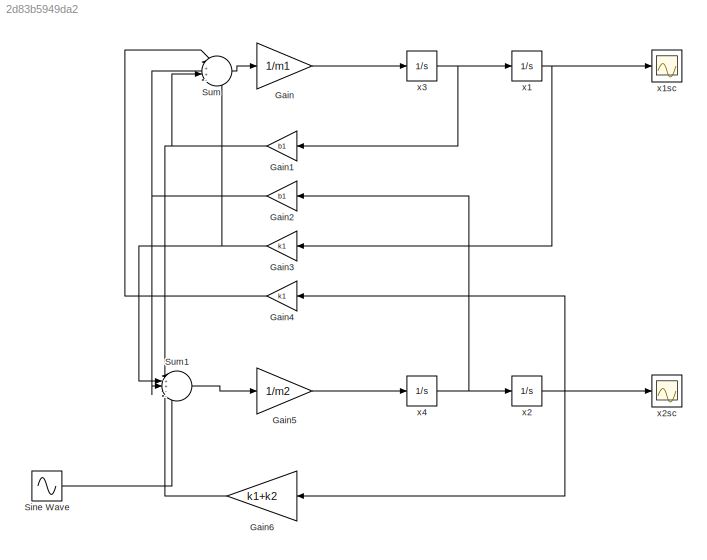
MODEL slx_2d83b5949da2
KIND model
CONFIG AbsTol = auto
CONFIG EnableMultiTasking = off
CONFIG FixedStep = auto
CONFIG MaxStep = auto
CONFIG MinStep = auto
CONFIG RelTol = 1e-3
CONFIG SampleTimeConstraint = Unconstrained
CONFIG SolverName = VariableStepAuto
CONFIG StartTime = 0.0
CONFIG StopTime = 15
BLOCK [Gain] Gain
  Gain = 1/m1
BLOCK [Gain] Gain1
  Gain = b1
  NameLocation = top
BLOCK [Gain] Gain2
  Gain = b1
  NameLocation = top
BLOCK [Gain] Gain3
  Gain = k1
  NameLocation = top
BLOCK [Gain] Gain4
  Gain = k1
  NameLocation = top
BLOCK [Gain] Gain5
  Gain = 1/m2
BLOCK [Gain] Gain6
  Gain = k1+k2
  NameLocation = top
BLOCK [Sin] Sine Wave
  Amplitude = 0.05*k2
  Frequency = pi*0.5
  SampleTime = 0
BLOCK [Sum] Sum
  Inputs = |++--
BLOCK [Sum] Sum1
  Inputs = |++--+
BLOCK [Integrator] x1
BLOCK [Scope] x1sc
  Floating = off
  NumInputPorts = 1
  ScopeSpecificationString = Simulink.scopes.TimeScopeBlockCfg('CurrentConfiguration', extmgr.ConfigurationSet(extmgr.Configuration('Core','General UI',true),extmgr.Configuration('Core','Source UI',true),extmgr.Configuration('Sources','WiredSimulink',true),extmgr.Configuration('Visuals','Time Domain',true,'SerializedDisplays',{struct('MinYLimReal','-0.07014','MaxYLimReal','0.0803','YLabelReal','','MinYLimMag','0.00000','MaxYL...<+1347ch>
BLOCK [Integrator] x2
BLOCK [Scope] x2sc
  Floating = off
  NumInputPorts = 1
  ScopeSpecificationString = Simulink.scopes.TimeScopeBlockCfg('CurrentConfiguration', extmgr.ConfigurationSet(extmgr.Configuration('Core','General UI',true),extmgr.Configuration('Core','Source UI',true),extmgr.Configuration('Sources','WiredSimulink',true,'DataLoggingVariableName','ScopeData1'),extmgr.Configuration('Visuals','Time Domain',true,'SerializedDisplays',{struct('MinYLimReal','-0.06636','MaxYLimReal','0.07079','YLab...<+1390ch>
BLOCK [Integrator] x3
BLOCK [Integrator] x4
NET Gain1:1 -> Sum1:1, Sum:3
NET Gain2:1 -> Sum1:3, Sum:2
NET Gain3:1 -> Sum1:2, Sum:4
LINE Gain4:1 -> Sum:1
LINE Gain5:1 -> x4:1
LINE Gain6:1 -> Sum1:4
LINE Gain:1 -> x3:1
LINE Sine Wave:1 -> Sum1:5
LINE Sum1:1 -> Gain5:1
LINE Sum:1 -> Gain:1
NET x1:1 -> Gain3:1, x1sc:1
NET x2:1 -> Gain4:1, Gain6:1, x2sc:1
NET x3:1 -> Gain1:1, x1:1
NET x4:1 -> Gain2:1, x2:1
note: NET lines group one-source signal fan-out (src -> all destinations, sorted); 1:1 wires keep LINE
